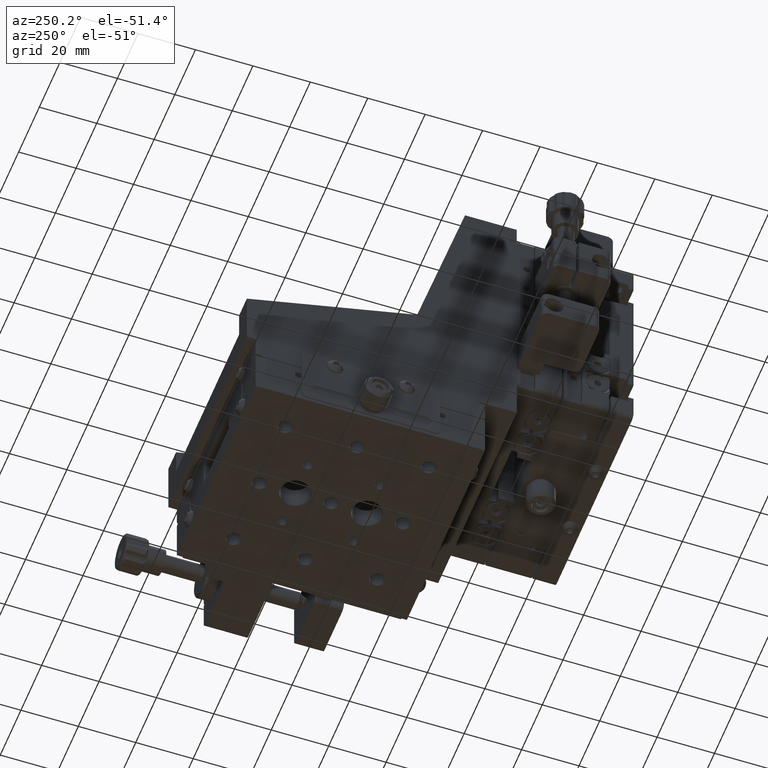
[diagram: clean part render]
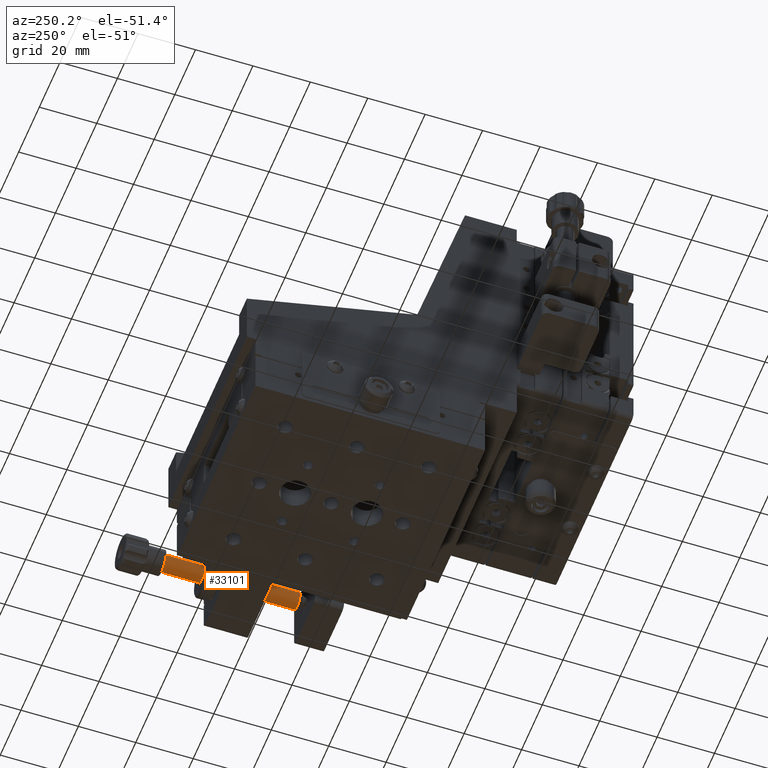
[diagram: same view with one face highlighted and labeled with its STEP entity id]
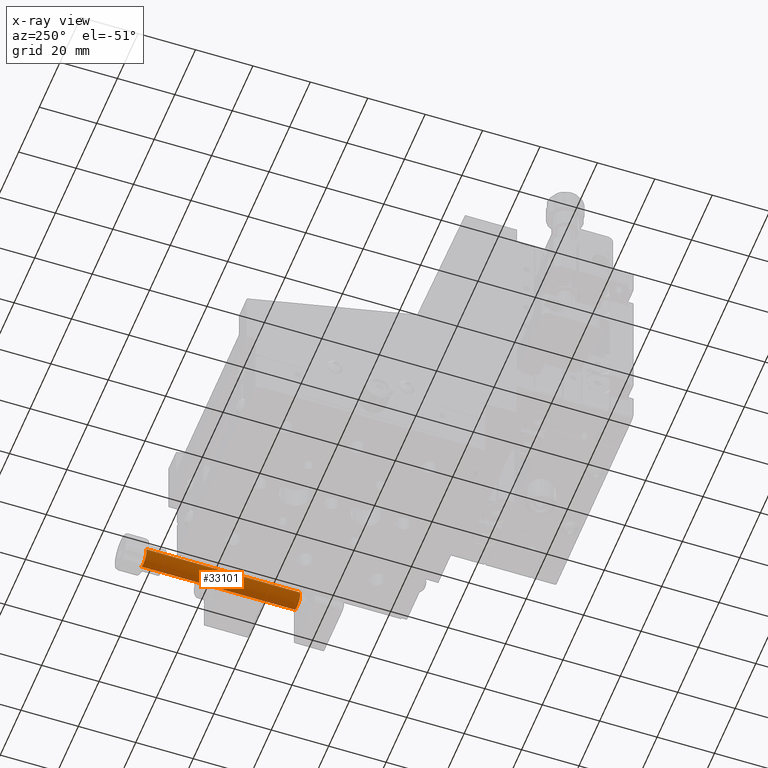
[diagram: x-ray of the same camera — body ghosted, the highlighted face saturated]
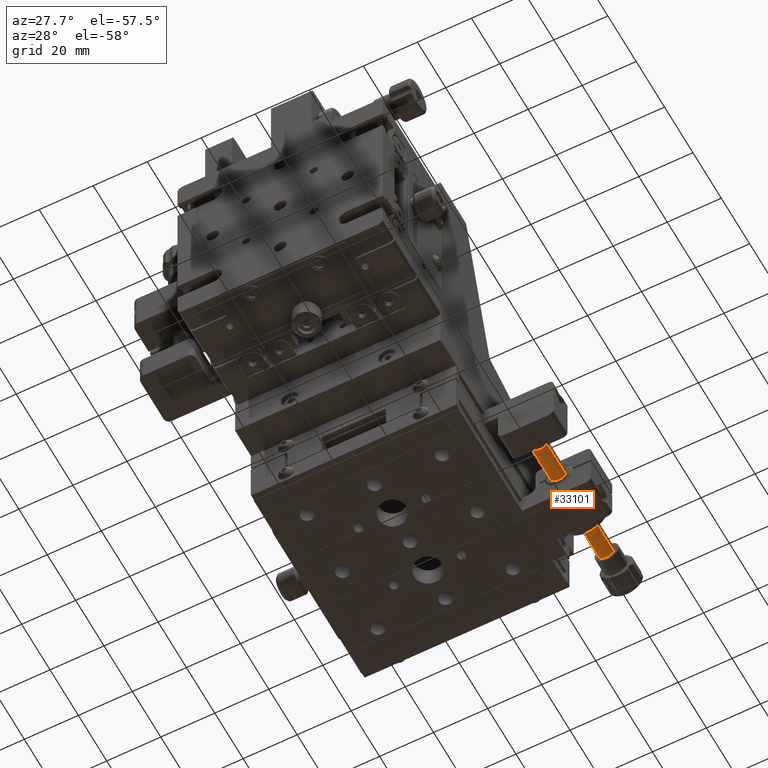
[diagram: same view with one face highlighted and labeled with its STEP entity id]
A machine part, auxiliary view. The second image highlights one B-rep face of the part: STEP entity #33101.
The next image is the same camera in x-ray: the body ghosted, the highlighted face saturated — about 0% of this face is hidden behind the body in this view.
A second angle (auxiliary view) of the same face is appended — the face is thin or edge-on in the first view.
In plain terms, the highlighted cylindrical surface (edge-blend (fillet) strip) has radius 3 mm, axis along (0, -1, -0).
Its self-contained STEP definition (entity closure, byte-faithful):
#1906 = CARTESIAN_POINT ( 'NONE',  ( 58.11747346207665300, 66.55014966623623700, 67.93096043845007200 ) ) ;
#9211 = CARTESIAN_POINT ( 'NONE',  ( 58.11747346207666000, 86.08926701829240400, 67.93096043845010000 ) ) ;
#14799 = CARTESIAN_POINT ( 'NONE',  ( 60.74312447431692900, 86.08926701829240400, 66.47976894112052500 ) ) ;
#16064 = AXIS2_PLACEMENT_3D ( 'NONE', #102715, #82901, #123808 ) ;
#16263 = LINE ( 'NONE', #77901, #97866 ) ;
#19753 = ORIENTED_EDGE ( 'NONE', *, *, #43141, .T. ) ;
#21258 = LINE ( 'NONE', #86181, #126613 ) ;
#26716 = CYLINDRICAL_SURFACE ( 'NONE', #81650, 3.000000000000000400 ) ;
#30222 = VERTEX_POINT ( 'NONE', #126657 ) ;
#32849 = EDGE_LOOP ( 'NONE', ( #19753, #72947, #86233, #40147 ) ) ;
#33101 = ADVANCED_FACE ( 'NONE', ( #108550 ), #26716, .T. ) ;
#37534 = AXIS2_PLACEMENT_3D ( 'NONE', #9211, #118952, #120682 ) ;
#39613 = EDGE_CURVE ( 'NONE', #30222, #57672, #21258, .T. ) ;
#39697 = CARTESIAN_POINT ( 'NONE',  ( 55.49182244983634900, 139.5892670182923300, 69.38215193577966000 ) ) ;
#40147 = ORIENTED_EDGE ( 'NONE', *, *, #107724, .F. ) ;
#41083 = CIRCLE ( 'NONE', #37534, 3.000000000000000400 ) ;
#43141 = EDGE_CURVE ( 'NONE', #68977, #30222, #56328, .T. ) ;
#52207 = DIRECTION ( 'NONE',  ( -0.8752170040800901800, 0.0000000000000000000, 0.4837304991098569400 ) ) ;
#56328 = CIRCLE ( 'NONE', #16064, 3.000000000000000400 ) ;
#57672 = VERTEX_POINT ( 'NONE', #14799 ) ;
#68977 = VERTEX_POINT ( 'NONE', #39697 ) ;
#72947 = ORIENTED_EDGE ( 'NONE', *, *, #39613, .T. ) ;
#77901 = CARTESIAN_POINT ( 'NONE',  ( 55.49182244983637700, 66.55014966623623700, 69.38215193577963200 ) ) ;
#81650 = AXIS2_PLACEMENT_3D ( 'NONE', #1906, #113363, #52207 ) ;
#82901 = DIRECTION ( 'NONE',  ( 4.440892098500527600E-016, -1.000000000000000000, -2.479998343015804400E-016 ) ) ;
#86181 = CARTESIAN_POINT ( 'NONE',  ( 60.74312447431692200, 66.55014966623623700, 66.47976894112049700 ) ) ;
#86233 = ORIENTED_EDGE ( 'NONE', *, *, #108969, .F. ) ;
#92913 = CARTESIAN_POINT ( 'NONE',  ( 55.49182244983638400, 86.08926701829240400, 69.38215193577966000 ) ) ;
#97866 = VECTOR ( 'NONE', #108316, 1000.000000000000000 ) ;
#102715 = CARTESIAN_POINT ( 'NONE',  ( 58.11747346207662400, 139.5892670182923300, 67.93096043845010000 ) ) ;
#105277 = VERTEX_POINT ( 'NONE', #92913 ) ;
#107724 = EDGE_CURVE ( 'NONE', #68977, #105277, #16263, .T. ) ;
#108316 = DIRECTION ( 'NONE',  ( 4.440892098500527600E-016, -1.000000000000000000, -2.479998343015804400E-016 ) ) ;
#108550 = FACE_OUTER_BOUND ( 'NONE', #32849, .T. ) ;
#108969 = EDGE_CURVE ( 'NONE', #105277, #57672, #41083, .T. ) ;
#113363 = DIRECTION ( 'NONE',  ( 4.440892098500527600E-016, -1.000000000000000000, -2.479998343015804400E-016 ) ) ;
#115637 = DIRECTION ( 'NONE',  ( 4.440892098500527600E-016, -1.000000000000000000, -2.479998343015804400E-016 ) ) ;
#118952 = DIRECTION ( 'NONE',  ( 4.440892098500527600E-016, -1.000000000000000000, -2.479998343015804400E-016 ) ) ;
#120682 = DIRECTION ( 'NONE',  ( -0.8752170040800901800, 0.0000000000000000000, 0.4837304991098569400 ) ) ;
#123808 = DIRECTION ( 'NONE',  ( -0.8752170040800901800, 0.0000000000000000000, 0.4837304991098569400 ) ) ;
#126613 = VECTOR ( 'NONE', #115637, 1000.000000000000000 ) ;
#126657 = CARTESIAN_POINT ( 'NONE',  ( 60.74312447431688600, 139.5892670182923300, 66.47976894112051100 ) ) ;